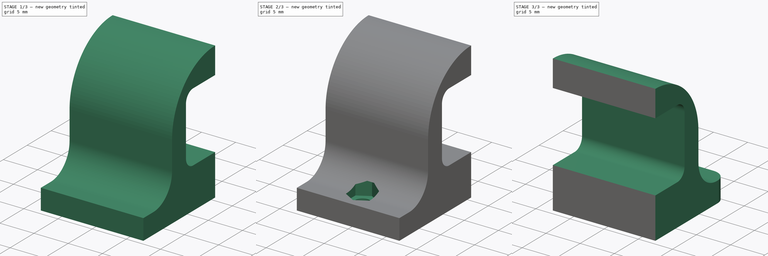
[diagram: build sequence overview — one tinted view per stage of 3, left to right]
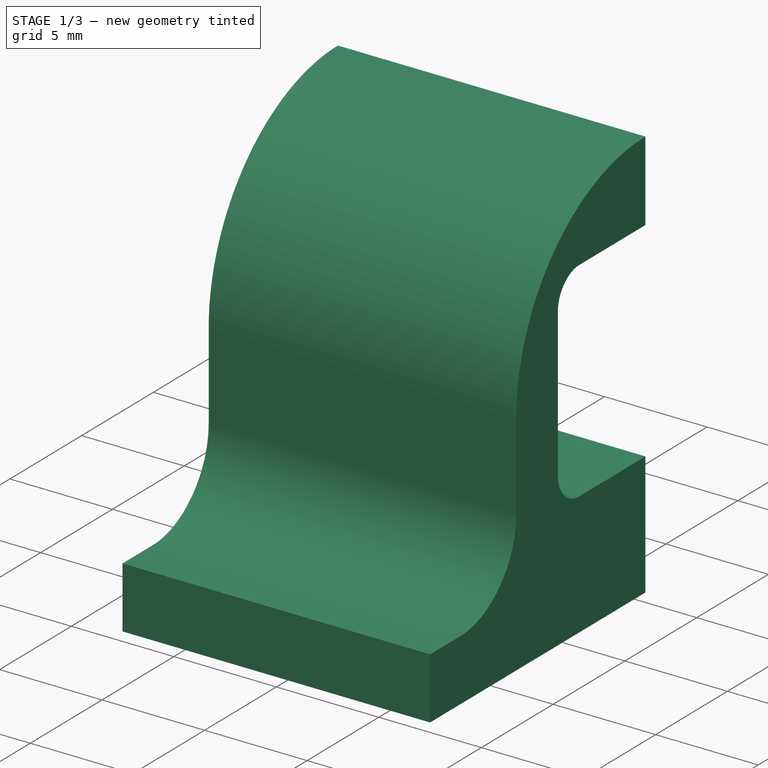
[diagram: stage 1 of 3 — iso view after this stage's code; geometry added in this stage tinted green]
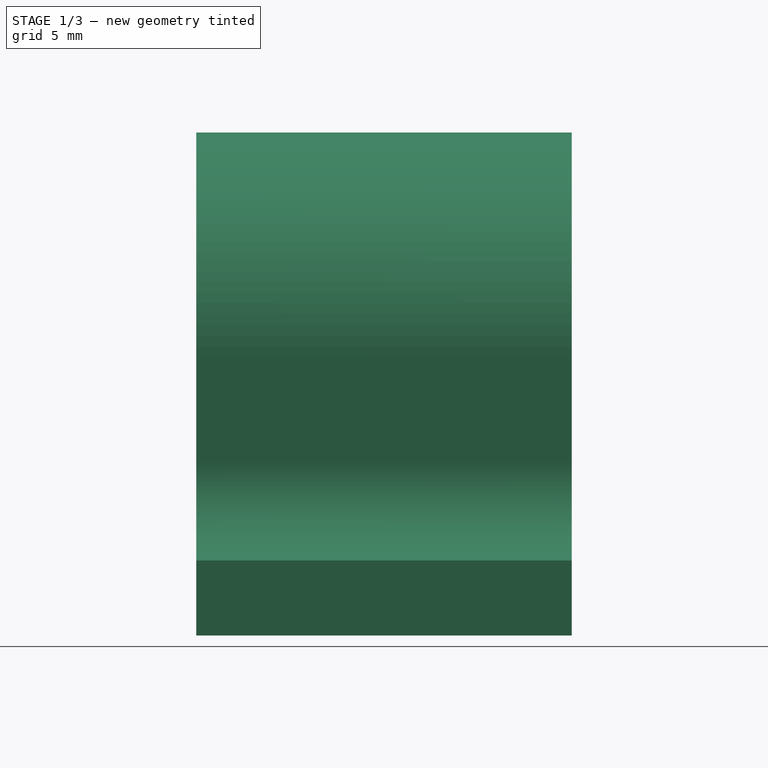
[diagram: stage 1 of 3 — front view after this stage's code; geometry added in this stage tinted green]
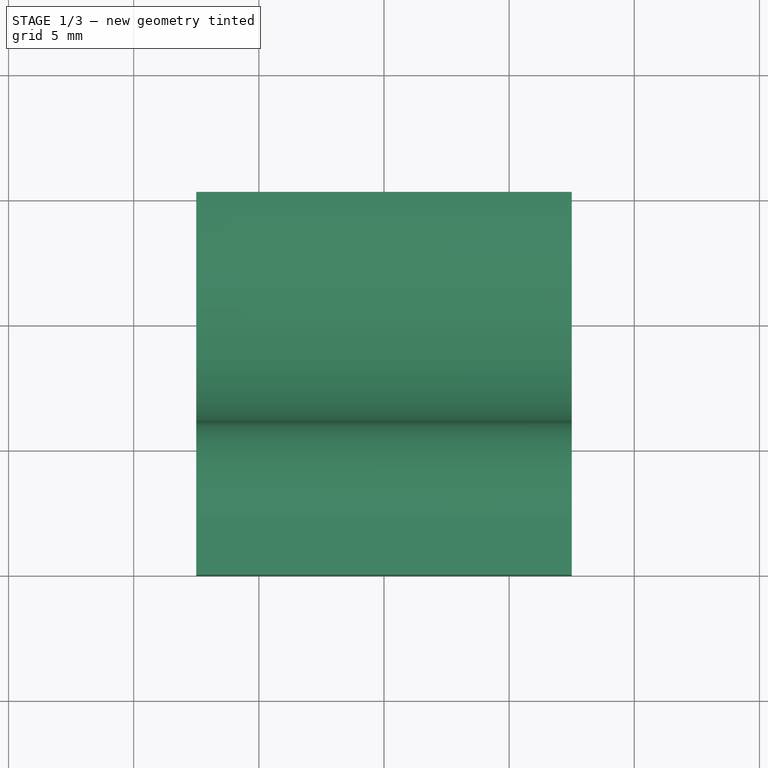
[diagram: stage 1 of 3 — top view after this stage's code; geometry added in this stage tinted green]
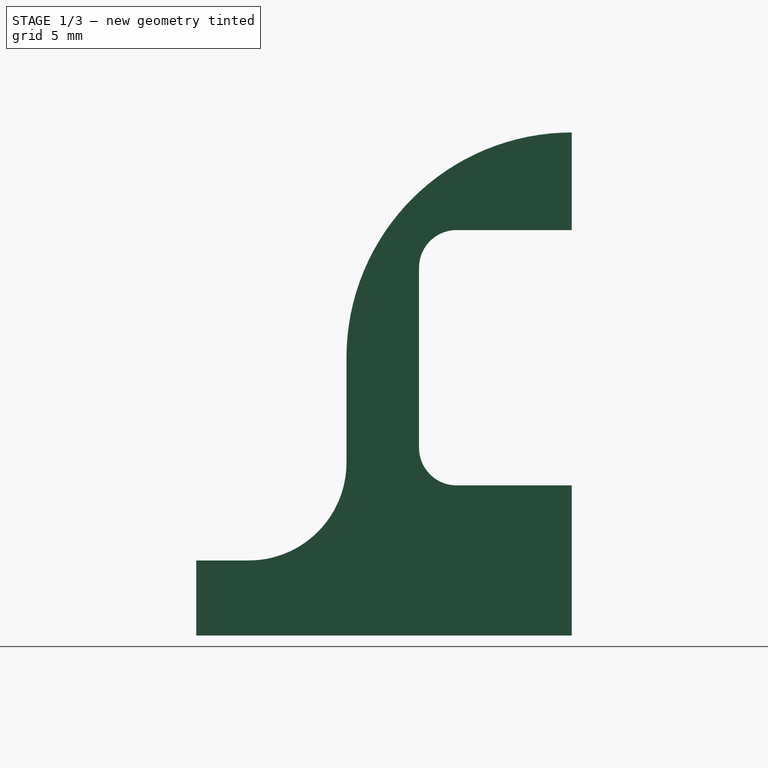
[diagram: stage 1 of 3 — right view after this stage's code; geometry added in this stage tinted green]
FCSTD DOCUMENT  (FreeCAD 0.21R33771 (Git))
Label: Motor_mount
License: All rights reserved
LicenseURL: http://en.wikipedia.org/wiki/All_rights_reserved
objects: Sketcher::SketchObject×4, PartDesign::Pocket×3, PartDesign::Pad×1, PartDesign::Fillet×1, PartDesign::Body×1, Part::Mirroring×1
note: 16 computed .brp shape members not serialized (recipe doc carries the construction recipe); baked Part::Feature solids carry a one-line shape summary decoded from their .brp

FEATURE [Sketcher::SketchObject] Sketch001
  FullyConstrained = true
  MapMode = 5
  Placement = pos=(10,-4.4e-15,3.3e-15) rot=(0.57735,0.57735,0.57735;2.0944rad)
  sketch-geometry (10):
    g0: ArcOfCircle CenterX=4.6 CenterY=3.6 CenterZ=0 NormalX=0 NormalY=0 NormalZ=1 AngleXU=0 Radius=1.5 StartAngle=2e-16 EndAngle=1.5708
    g1: LineSegment StartX=6.1 StartY=3.6 StartZ=0 EndX=6.1 EndY=-3.6 EndZ=0
    g2: ArcOfCircle CenterX=4.6 CenterY=-3.6 CenterZ=0 NormalX=0 NormalY=0 NormalZ=1 AngleXU=0 Radius=1.5 StartAngle=4.71239 EndAngle=6.28319
    g3: LineSegment StartX=4.6 StartY=-5.1 StartZ=0 EndX=-4.6 EndY=-5.1 EndZ=0
    g4: ArcOfCircle CenterX=-4.6 CenterY=-3.6 CenterZ=0 NormalX=0 NormalY=0 NormalZ=1 AngleXU=0 Radius=1.5 StartAngle=3.14159 EndAngle=4.71239
    g5: LineSegment StartX=-6.1 StartY=-3.6 StartZ=0 EndX=-6.1 EndY=3.6 EndZ=0
    g6: ArcOfCircle CenterX=-4.6 CenterY=3.6 CenterZ=0 NormalX=0 NormalY=0 NormalZ=1 AngleXU=0 Radius=1.5 StartAngle=1.5708 EndAngle=3.14159
    g7: LineSegment StartX=-4.6 StartY=5.1 StartZ=0 EndX=4.6 EndY=5.1 EndZ=0
    g8: GeomPoint X=6.1 Y=5.1 Z=0
    g9: GeomPoint X=-6.1 Y=-5.1 Z=0
  constraints (23):
    c: Tangent(g0,g1) = 1.5708
    c: Tangent(g1,g2) = 1.5708
    c: Tangent(g2,g3) = 1.5708
    c: Tangent(g3,g4) = 1.5708
    c: Tangent(g4,g5) = 1.5708
    c: Tangent(g5,g6) = 1.5708
    c: Tangent(g6,g7) = 1.5708
    c: Tangent(g7,g0) = 1.5708
    c: Horizontal(g3)
    c: Horizontal(g7)
    c: Vertical(g1)
    c: Vertical(g5)
    c: Equal(g0,g2)
    c: Equal(g2,g4)
    c: Equal(g4,g6)
    c: PointOnObject(g8,g1)
    c: PointOnObject(g8,g7)
    c: PointOnObject(g9,g3)
    c: PointOnObject(g9,g5)
    c: DistanceY(g1,g1) = 7.2
    c: DistanceX(g3,g3) = 9.2
    c: Symmetric(g4,g0,g-1)
    c: Radius(g0) = 1.5
FEATURE [Sketcher::SketchObject] Sketch
  ExternalGeometry = -> [Sketch001]
  FullyConstrained = false
  MapMode = 5
  Placement = pos=(0,0,0) rot=(0.57735,0.57735,0.57735;2.0944rad)
  Support = -> [YZ_Plane]
  sketch-geometry (11):
    g0: LineSegment StartX=0 StartY=0 StartZ=0 EndX=-16.8621 EndY=7.86291 EndZ=0
    g1: LineSegment StartX=0 StartY=0 StartZ=0 EndX=-19.6979 EndY=-9.18527 EndZ=0
    g2: ArcOfCircle CenterX=0 CenterY=0 CenterZ=0 NormalX=0 NormalY=0 NormalZ=1 AngleXU=0 Radius=9 StartAngle=1.5708 EndAngle=3.14159
    g3: LineSegment StartX=-23.7779 StartY=-11.1 StartZ=0 EndX=25.9834 EndY=-11.1 EndZ=0
    g4: LineSegment StartX=-9 StartY=1.1e-15 StartZ=0 EndX=-9 EndY=-4.19677 EndZ=0
    g5: LineSegment StartX=-21.8648 StartY=-8.1 StartZ=0 EndX=26.3681 EndY=-8.1 EndZ=0
    g6: ArcOfCircle CenterX=-12.9032 CenterY=-4.19677 CenterZ=0 NormalX=0 NormalY=0 NormalZ=1 AngleXU=0 Radius=3.90323 StartAngle=4.71239 EndAngle=6.28319
    g7: LineSegment StartX=6e-16 StartY=-11.1 StartZ=0 EndX=-15 EndY=-11.1 EndZ=0
    g8: LineSegment StartX=6e-16 StartY=9 StartZ=0 EndX=6e-16 EndY=-11.1 EndZ=0
    g9: LineSegment StartX=-15 StartY=-11.1 StartZ=0 EndX=-15 EndY=-8.1 EndZ=0
    g10: LineSegment StartX=-12.9032 StartY=-8.1 StartZ=0 EndX=-15 EndY=-8.1 EndZ=0
  constraints (27):
    c: Angle(g-2,g0) = 1.13446
    c: Angle(g0,g1) = 0.872665
    c: PointOnObject(g2,g-2)
    c: Radius(g2) = 9
    c: Vertical(g4)
    c: Tangent(g4,g2) = -1.5708
    c: PointOnObject(g4,g1)
    c: Horizontal(g5)
    c: Tangent(g6,g4) = 1.5708
    c: PointOnObject(g7,g3)
    c: PointOnObject(g7,g3)
    c: Coincident(g8,g2)
    c: Coincident(g8,g7)
    c: Vertical(g8)
    c: Coincident(g0,g1)
    c: Coincident(g0,g2)
    c: Coincident(g0,g-1)
    c: Parallel(g3,g-1)
    c: PointOnObject(g6,g5)
    c: DistanceY(g3,g-4) = 6
    c: DistanceY(g3,g5) = 3
    c: DistanceX(g7,g7) = 15
    c: Coincident(g9,g7)
    c: PointOnObject(g9,g5)
    c: Vertical(g9)
    c: Coincident(g10,g9)
    c: Tangent(g10,g6) = 1.5708
FEATURE [PartDesign::Pad] Pad
  Direction = (1,-2e-16,3e-16)
  Length = 15
  Length2 = 10
  Midplane = true
  Placement = pos=(0,0,0) rot=(1,1,1;2.0944rad)
  Profile = -> Sketch
  ReferenceAxis = -> Sketch [N_Axis]
  Type = 0
FEATURE [PartDesign::Pocket] Pocket
  BaseFeature = -> Pad
  Direction = (-1,4e-16,-4e-16)
  Length = 5
  Length2 = 5
  Placement = pos=(0,0,0) rot=(1,1,1;2.0944rad)
  Profile = -> Sketch001
  ReferenceAxis = -> Sketch001 [N_Axis]
  Type = 1
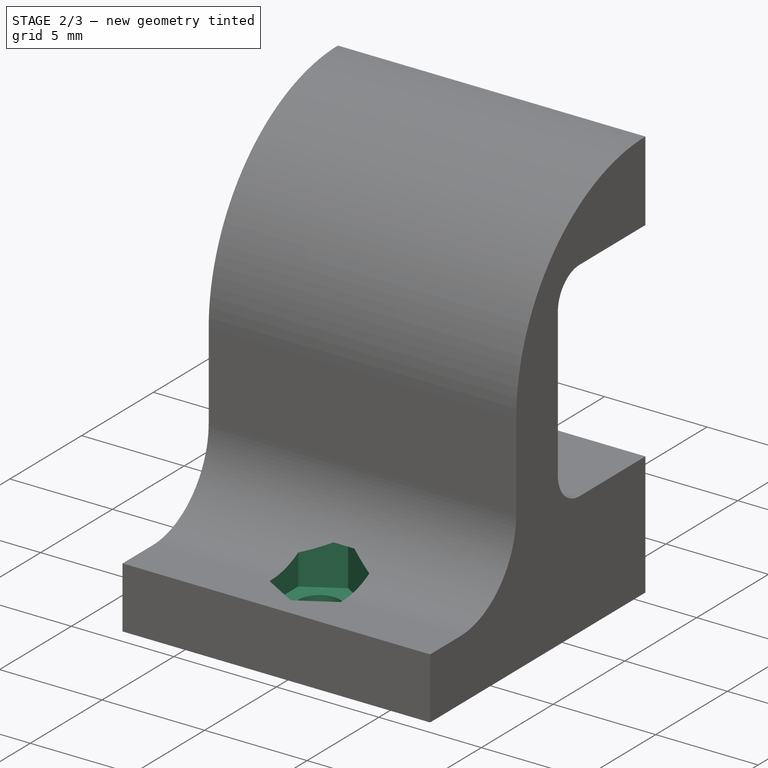
[diagram: stage 2 of 3 — iso view after this stage's code; geometry added in this stage tinted green]
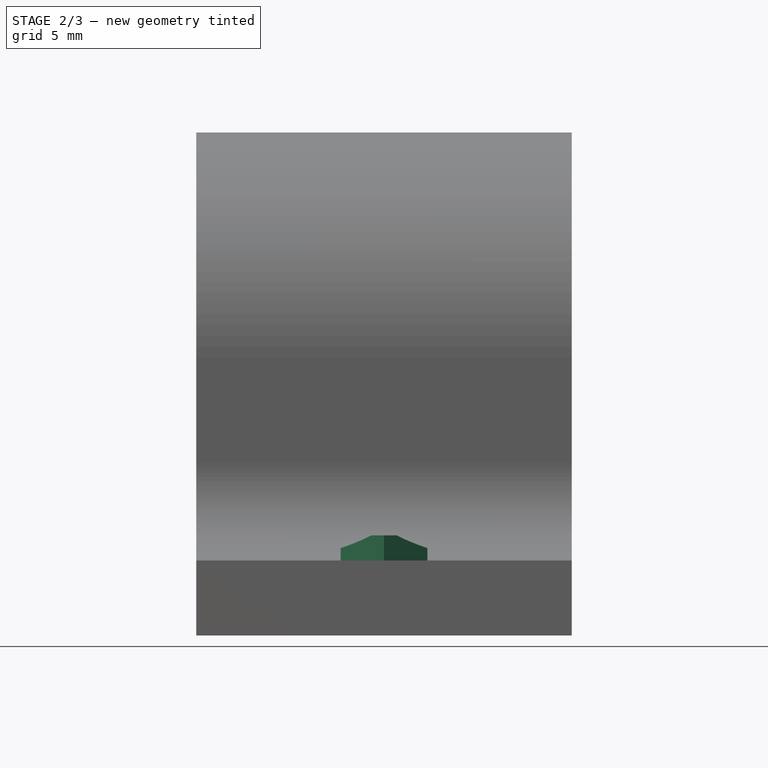
[diagram: stage 2 of 3 — front view after this stage's code; geometry added in this stage tinted green]
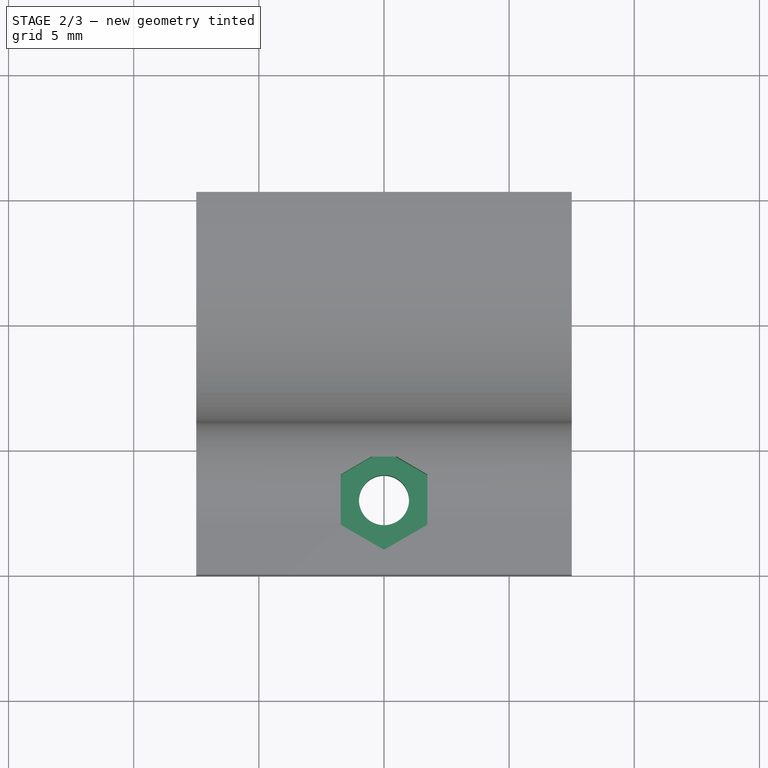
[diagram: stage 2 of 3 — top view after this stage's code; geometry added in this stage tinted green]
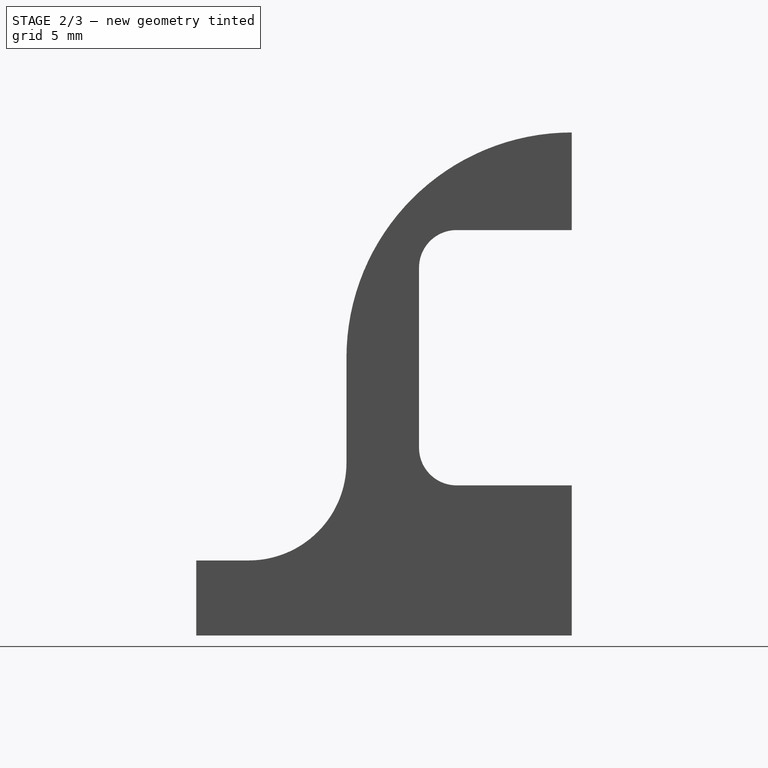
[diagram: stage 2 of 3 — right view after this stage's code; geometry added in this stage tinted green]
FEATURE [Sketcher::SketchObject] Sketch002
  ExternalGeometry = -> [Pocket]
  FullyConstrained = true
  MapMode = 5
  Placement = pos=(8e-15,-8.7e-15,-11.1) rot=(0.707107,0.707107,0;3.14159rad)
  Support = -> [Pocket]
  sketch-geometry (1):
    g0: Circle CenterX=-12 CenterY=0 CenterZ=0 NormalX=0 NormalY=0 NormalZ=1 AngleXU=0 Radius=1
  constraints (4):
    c: DistanceX(g-4,g-3) = 6
    c: PointOnObject(g0,g-1)
    c: Radius(g0) = 1
    c: DistanceX(g-4,g0) = 3
FEATURE [PartDesign::Pocket] Pocket001
  BaseFeature = -> Pocket
  Direction = (-7e-16,8e-16,1)
  Length = 5
  Length2 = 5
  Placement = pos=(0,0,0) rot=(1,1,1;2.0944rad)
  Profile = -> Sketch002
  ReferenceAxis = -> Sketch002 [N_Axis]
  Type = 1
FEATURE [Sketcher::SketchObject] Sketch003
  ExternalGeometry = -> [Pocket001]
  FullyConstrained = true
  MapMode = 5
  Placement = pos=(8.5e-15,-1.32e-14,-8.1) rot=(0,0,-1;1.5708rad)
  Support = -> [Pocket001]
  sketch-geometry (7):
    g0: LineSegment StartX=14 StartY=0 StartZ=0 EndX=13 EndY=1.73205 EndZ=0
    g1: LineSegment StartX=13 StartY=1.73205 StartZ=0 EndX=11 EndY=1.73205 EndZ=0
    g2: LineSegment StartX=11 StartY=1.73205 StartZ=0 EndX=10 EndY=-1.705e-13 EndZ=0
    g3: LineSegment StartX=10 StartY=-1.705e-13 StartZ=0 EndX=11 EndY=-1.73205 EndZ=0
    g4: LineSegment StartX=11 StartY=-1.73205 StartZ=0 EndX=13 EndY=-1.73205 EndZ=0
    g5: LineSegment StartX=13 StartY=-1.73205 StartZ=0 EndX=14 EndY=0 EndZ=0
    g6: Circle CenterX=12 CenterY=0 CenterZ=0 NormalX=0 NormalY=0 NormalZ=1 AngleXU=0 Radius=2
  constraints (16):
    c: Coincident(g0,g1)
    c: Coincident(g1,g2)
    c: Coincident(g2,g3)
    c: Coincident(g3,g4)
    c: Coincident(g4,g5)
    c: Coincident(g5,g0)
    c: Equal(g0, g1-g5) x5
    c: PointOnObject(g0,g6)
    c: PointOnObject(g1,g6)
    c: PointOnObject(g2,g6)
    c: PointOnObject(g3,g6)
    c: PointOnObject(g4,g6)
    c: PointOnObject(g5,g6)
    c: Coincident(g6,g-3)
    c: PointOnObject(g5,g-1)
    c: Distance(g0) = 2
FEATURE [PartDesign::Pocket] Pocket002
  BaseFeature = -> Pocket001
  Direction = (1.1e-15,-1.6e-15,-1)
  Length = 2
  Length2 = 5
  Midplane = true
  Placement = pos=(0,0,0) rot=(1,1,1;2.0944rad)
  Profile = -> Sketch003
  ReferenceAxis = -> Sketch003 [N_Axis]
  Type = 0
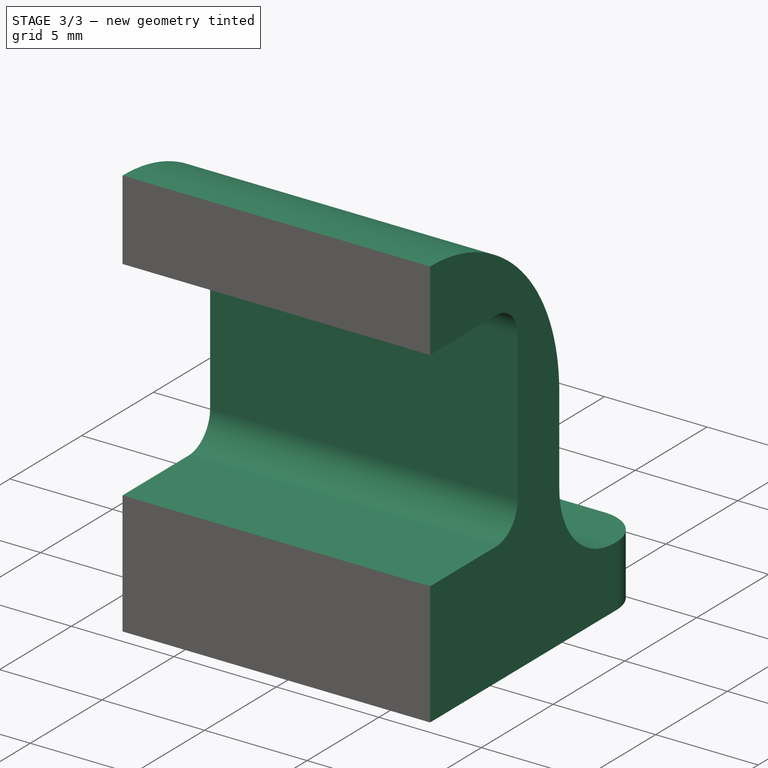
[diagram: stage 3 of 3 — iso view after this stage's code; geometry added in this stage tinted green]
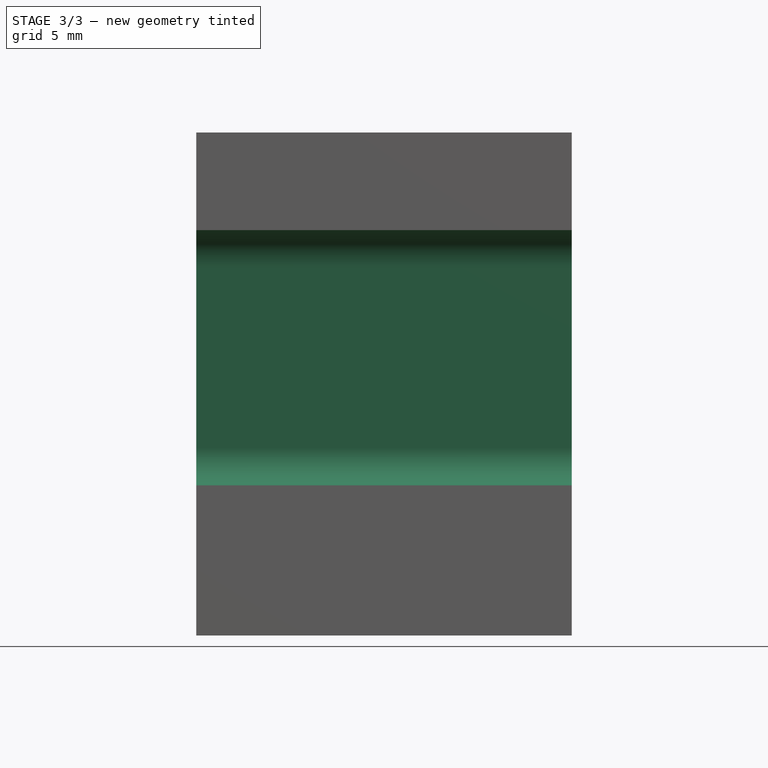
[diagram: stage 3 of 3 — front view after this stage's code; geometry added in this stage tinted green]
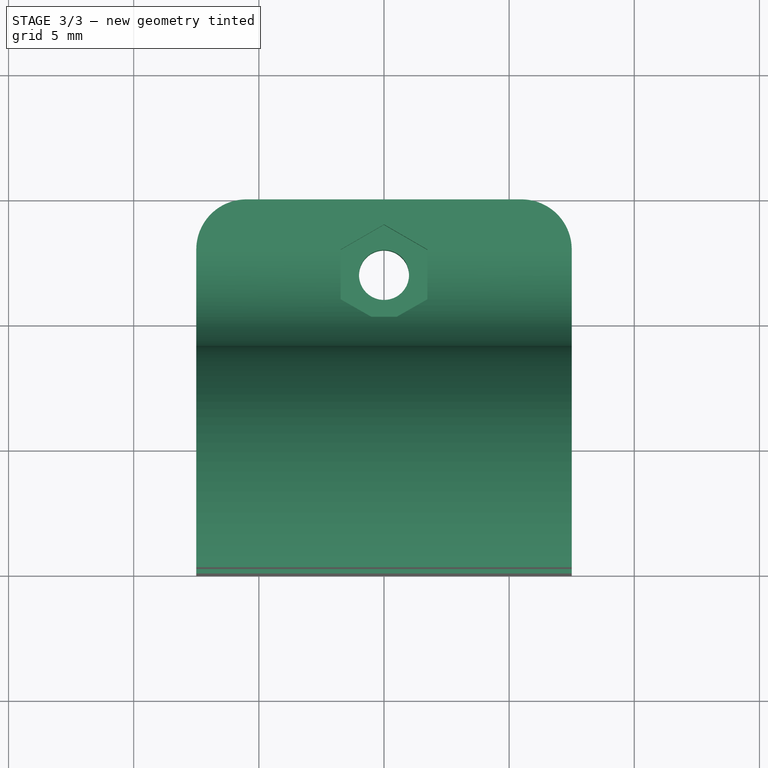
[diagram: stage 3 of 3 — top view after this stage's code; geometry added in this stage tinted green]
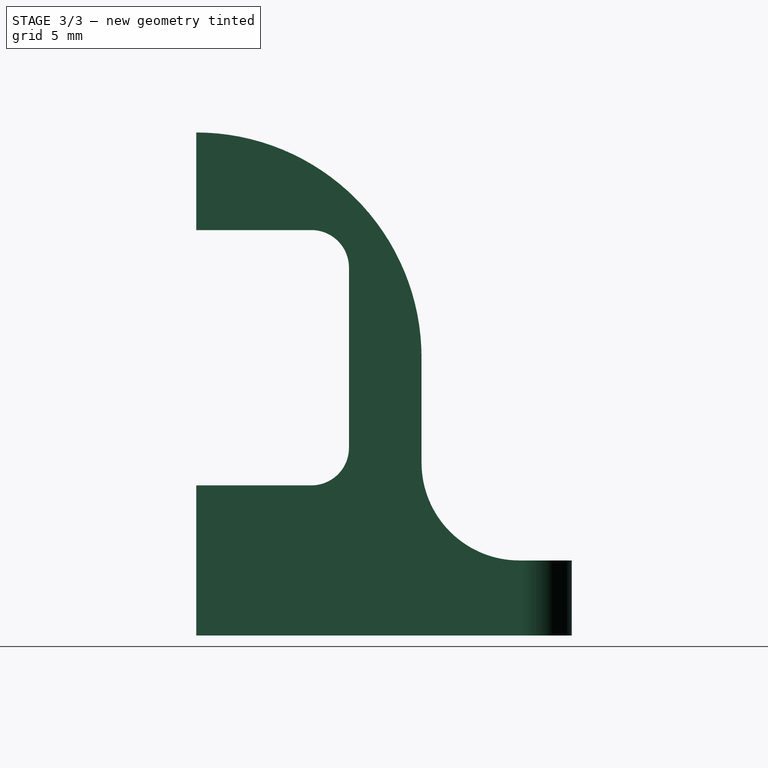
[diagram: stage 3 of 3 — right view after this stage's code; geometry added in this stage tinted green]
FEATURE [PartDesign::Fillet] Fillet
  Base = -> Pocket002 [Edge25,Edge12]
  BaseFeature = -> Pocket002
  Placement = pos=(0,0,0) rot=(1,1,1;2.0944rad)
  Radius = 2
  SupportTransform = false
  UseAllEdges = false
FEATURE [PartDesign::Body] Body
  Group = -> [Sketch,Sketch001,Pad,Pocket,Sketch002,Pocket001,Sketch003,Pocket002,Fillet]
  Origin = -> Origin
  Tip = -> Fillet
FEATURE [Part::Mirroring] Part__Mirroring  label="Fillet (Mirror #1)"
  Base = (0,0,0)
  Normal = (0,1,0)
  Source = -> Fillet
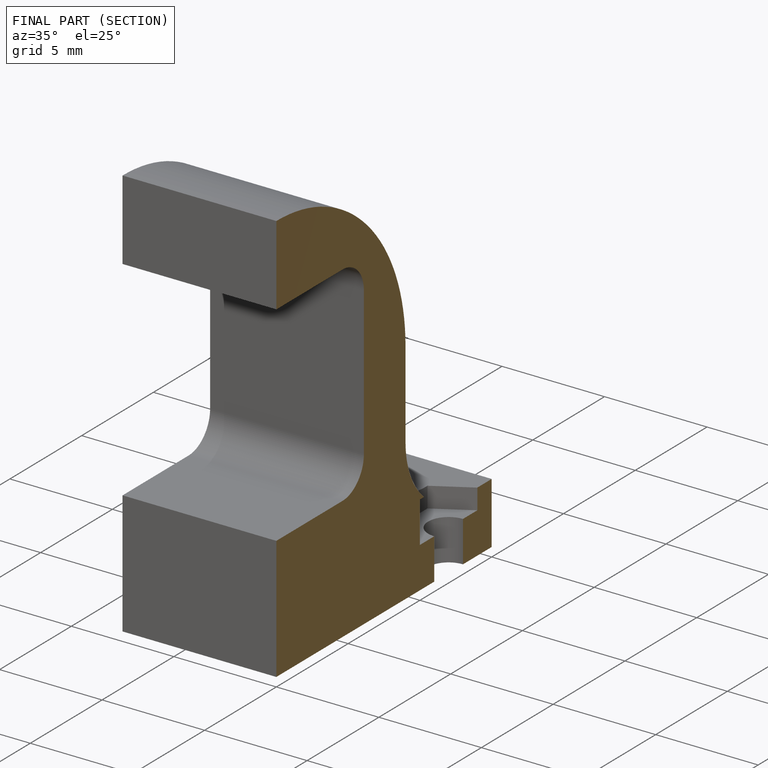
[diagram: finished part — half-section view (interior)]
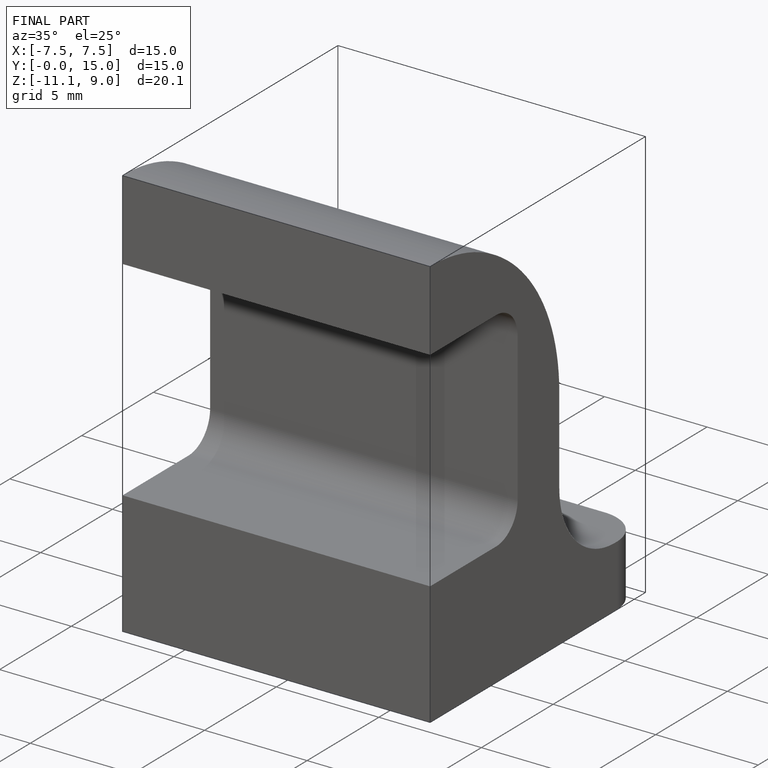
[diagram: finished part — iso view with bounding-box wireframe]
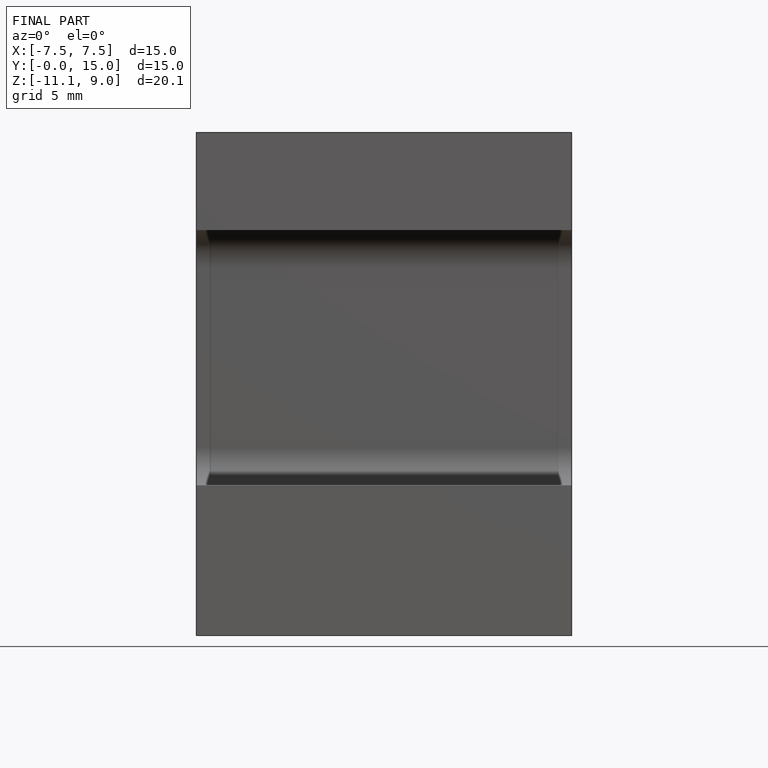
[diagram: finished part — front view with bounding-box wireframe]
